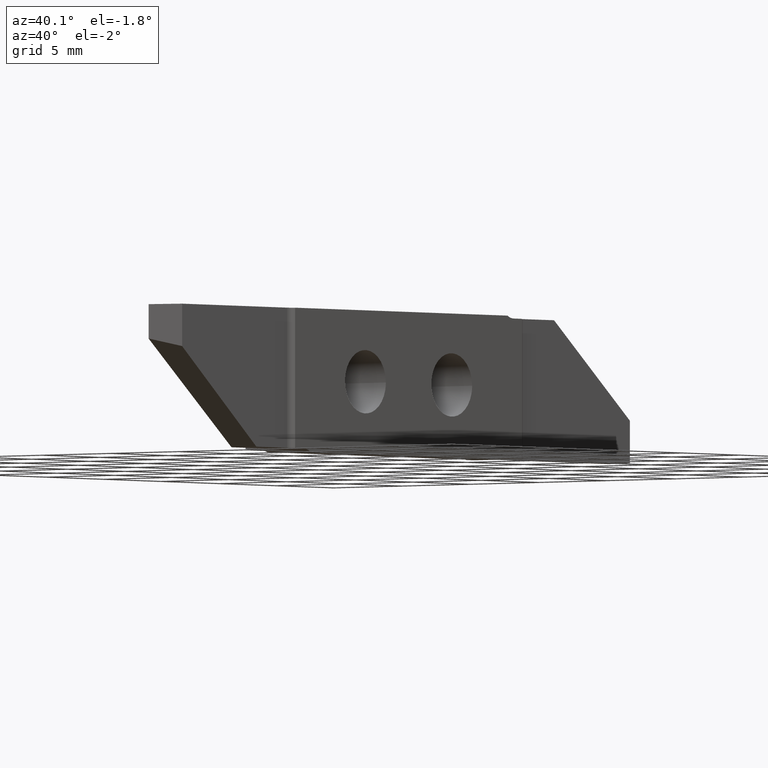
[diagram: clean part render]
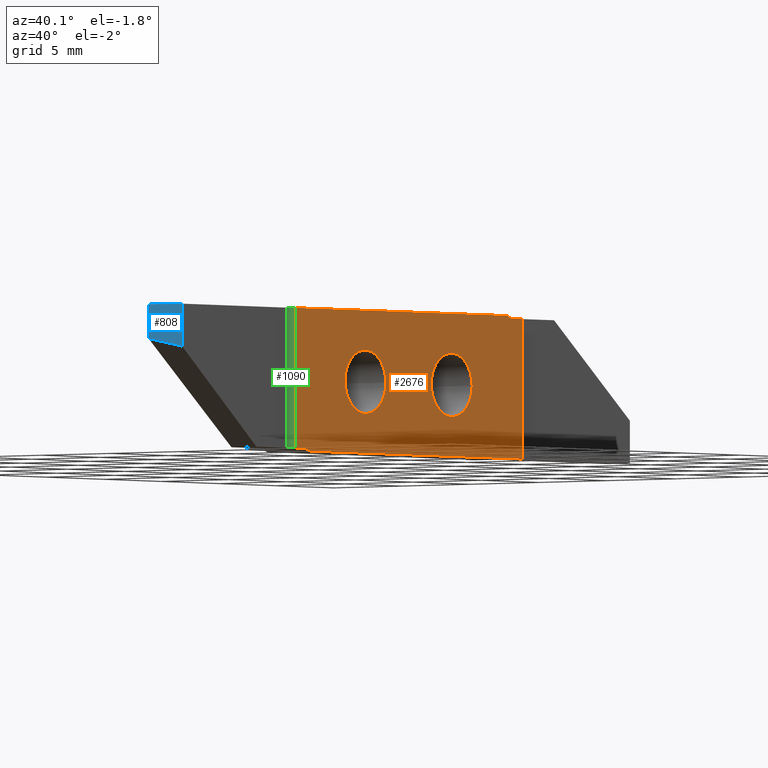
[diagram: same view with three faces highlighted in distinct colors, each labeled with its STEP entity id]
A machine part, auxiliary view with three faces highlighted in distinct colors.
Their STEP definitions:

[orange] entity #2676 — the highlighted planar face has unit normal (1, 0, -0).
#12=CARTESIAN_POINT('',(3.599999682,9.55,-3.000000382));
#13=VERTEX_POINT('',#12);
#24=CARTESIAN_POINT('',(3.599999682,13.1,-3.000000382));
#25=CARTESIAN_POINT('',(3.59999987,13.1,-1.225000382));
#26=CARTESIAN_POINT('',(3.59999987,11.325,-1.225000382));
#27=CARTESIAN_POINT('',(3.59999987,9.55,-1.225000382));
#28=CARTESIAN_POINT('',(3.599999682,9.55,-3.000000382));
#29=(BOUNDED_CURVE()B_SPLINE_CURVE(2,(#24,#25,#26,#27,#28),.UNSPECIFIED.,.F.,.F.)B_SPLINE_CURVE_WITH_KNOTS((3,2,3),(0.,1.570796327,3.141592654),.UNSPECIFIED.)CURVE()GEOMETRIC_REPRESENTATION_ITEM()RATIONAL_B_SPLINE_CURVE((1.,0.7071067812,1.,0.7071067812,1.)
)REPRESENTATION_ITEM(''));
#30=CARTESIAN_POINT('',(3.599999682,13.1,-3.000000382));
#31=VERTEX_POINT('',#30);
#32=EDGE_CURVE('',#31,#13,#29,.T.);
#363=CARTESIAN_POINT('',(3.599999682,2.05,-3.000000382));
#364=CARTESIAN_POINT('',(3.599999493,2.05,-4.775000382));
#365=CARTESIAN_POINT('',(3.599999493,3.825,-4.775000382));
#366=CARTESIAN_POINT('',(3.599999493,5.6,-4.775000382));
#367=CARTESIAN_POINT('',(3.599999682,5.6,-3.000000382));
#368=(BOUNDED_CURVE()B_SPLINE_CURVE(2,(#363,#364,#365,#366,#367),.UNSPECIFIED.,.F.,.F.)B_SPLINE_CURVE_WITH_KNOTS((3,2,3),(0.,1.570796327,3.141592654),.UNSPECIFIED.)CURVE()GEOMETRIC_REPRESENTATION_ITEM()RATIONAL_B_SPLINE_CURVE((1.,0.7071067812,1.,0.7071067812
,1.))REPRESENTATION_ITEM(''));
#369=CARTESIAN_POINT('',(3.599999682,2.05,-3.000000382));
#370=VERTEX_POINT('',#369);
#371=CARTESIAN_POINT('',(3.599999682,5.6,-3.000000382));
#372=VERTEX_POINT('',#371);
#373=EDGE_CURVE('',#370,#372,#368,.T.);
#445=CARTESIAN_POINT('',(3.599999682,5.6,-3.000000382));
#446=CARTESIAN_POINT('',(3.59999987,5.6,-1.225000382));
#447=CARTESIAN_POINT('',(3.59999987,3.825,-1.225000382));
#448=CARTESIAN_POINT('',(3.59999987,2.05,-1.225000382));
#449=CARTESIAN_POINT('',(3.599999682,2.05,-3.000000382));
#450=(BOUNDED_CURVE()B_SPLINE_CURVE(2,(#445,#446,#447,#448,#449),.UNSPECIFIED.,.F.,.F.)B_SPLINE_CURVE_WITH_KNOTS((3,2,3),(0.,1.570796327,3.141592654),.UNSPECIFIED.)CURVE()GEOMETRIC_REPRESENTATION_ITEM()RATIONAL_B_SPLINE_CURVE((1.,0.7071067812,1.,0.7071067812
,1.))REPRESENTATION_ITEM(''));
#451=EDGE_CURVE('',#372,#370,#450,.T.);
#517=CARTESIAN_POINT('',(3.599999273,-2.287185244,-6.850000382));
#518=VERTEX_POINT('',#517);
#529=CARTESIAN_POINT('',(3.599999273,-2.287185244,-6.850000382));
#530=DIRECTION('',(0.,1.,-2.426473385E-15));
#531=VECTOR('',#530,0.7320734902);
#532=LINE('',#529,#531);
#533=CARTESIAN_POINT('',(3.599999273,-1.555111754,-6.850000382));
#534=VERTEX_POINT('',#533);
#535=EDGE_CURVE('',#518,#534,#532,.T.);
#965=CARTESIAN_POINT('',(3.599999257,-1.028329067,-7.000000382));
#966=VERTEX_POINT('',#965);
#1003=CARTESIAN_POINT('',(3.599999273,-1.555111754,-6.850000382));
#1004=CARTESIAN_POINT('',(3.599999273,-1.270364355,-6.850000382));
#1005=CARTESIAN_POINT('',(3.599999257,-1.028329067,-7.000000382));
#1006=(BOUNDED_CURVE()B_SPLINE_CURVE(2,(#1003,#1004,#1005),.UNSPECIFIED.,.F.,.F.)B_SPLINE_CURVE_WITH_KNOTS((3,3),(0.,0.554811033),.UNSPECIFIED.)CURVE()GEOMETRIC_REPRESENTATION_ITEM()RATIONAL_B_SPLINE_CURVE((1.,0.9617692031,1.))REPRESENTATION_ITEM(''));
#1007=EDGE_CURVE('',#534,#966,#1006,.T.);
#1053=CARTESIAN_POINT('',(3.600000106,-2.287185244,0.999999618));
#1054=VERTEX_POINT('',#1053);
#1065=CARTESIAN_POINT('',(3.599999273,-2.287185244,-6.850000382));
#1066=DIRECTION('',(1.06116769E-07,-2.715449946E-15,1.));
#1067=VECTOR('',#1066,7.85);
#1068=LINE('',#1065,#1067);
#1069=EDGE_CURVE('',#518,#1054,#1068,.T.);
#1263=CARTESIAN_POINT('',(3.600000106,16.17832907,0.999999618));
#1264=VERTEX_POINT('',#1263);
#1275=CARTESIAN_POINT('',(3.600000106,16.17832907,0.999999618));
#1276=DIRECTION('',(0.,-1.,-1.483863584E-14));
#1277=VECTOR('',#1276,18.46551431);
#1278=LINE('',#1275,#1277);
#1279=EDGE_CURVE('',#1264,#1054,#1278,.T.);
#1398=CARTESIAN_POINT('',(3.60000009,16.70511175,0.849999618));
#1399=VERTEX_POINT('',#1398);
#1410=CARTESIAN_POINT('',(3.60000009,16.70511175,0.849999618));
#1411=CARTESIAN_POINT('',(3.60000009,16.42036436,0.849999618));
#1412=CARTESIAN_POINT('',(3.600000106,16.17832907,0.999999618));
#1413=(BOUNDED_CURVE()B_SPLINE_CURVE(2,(#1410,#1411,#1412),.UNSPECIFIED.,.F.,.F.)B_SPLINE_CURVE_WITH_KNOTS((3,3),(0.,0.554811033),.UNSPECIFIED.)CURVE()GEOMETRIC_REPRESENTATION_ITEM()RATIONAL_B_SPLINE_CURVE((1.,0.9617692031,1.))REPRESENTATION_ITEM(''));
#1414=EDGE_CURVE('',#1399,#1264,#1413,.T.);
#1722=CARTESIAN_POINT('',(3.60000009,17.43718524,0.849999618));
#1723=VERTEX_POINT('',#1722);
#1734=CARTESIAN_POINT('',(3.60000009,17.43718524,0.849999618));
#1735=DIRECTION('',(0.,-1.,3.639710077E-15));
#1736=VECTOR('',#1735,0.7320734902);
#1737=LINE('',#1734,#1736);
#1738=EDGE_CURVE('',#1723,#1399,#1737,.T.);
#1802=CARTESIAN_POINT('',(3.599999257,17.43718524,-7.000000382));
#1803=VERTEX_POINT('',#1802);
#1814=CARTESIAN_POINT('',(3.60000009,17.43718524,0.849999618));
#1815=DIRECTION('',(-1.06116769E-07,2.715449946E-15,-1.));
#1816=VECTOR('',#1815,7.85);
#1817=LINE('',#1814,#1816);
#1818=EDGE_CURVE('',#1723,#1803,#1817,.T.);
#2296=CARTESIAN_POINT('',(3.599999257,-1.028329067,-7.000000382));
#2297=DIRECTION('',(0.,1.,-3.463150018E-15));
#2298=VECTOR('',#2297,18.46551431);
#2299=LINE('',#2296,#2298);
#2300=EDGE_CURVE('',#966,#1803,#2299,.T.);
#2550=CARTESIAN_POINT('',(3.599999682,7.575,-3.000000382));
#2551=DIRECTION('',(1.,0.,-1.061167691E-07));
#2552=DIRECTION('',(1.061167691E-07,0.,1.));
#2553=AXIS2_PLACEMENT_3D('',#2550,#2551,#2552);
#2554=PLANE('',#2553);
#2555=ORIENTED_EDGE('Edge 274',*,*,#1069,.F.);
#2564=ORIENTED_EDGE('Edge 279',*,*,#535,.T.);
#2573=ORIENTED_EDGE('Edge 284',*,*,#1007,.T.);
#2582=ORIENTED_EDGE('Edge 461',*,*,#2300,.T.);
#2591=ORIENTED_EDGE('Edge 950',*,*,#1818,.F.);
#2600=ORIENTED_EDGE('Edge 555',*,*,#1738,.T.);
#2609=ORIENTED_EDGE('Edge 1009',*,*,#1414,.T.);
#2618=ORIENTED_EDGE('Edge 192',*,*,#1279,.T.);
#2627=EDGE_LOOP('',(#2555,#2564,#2573,#2582,#2591,#2600,#2609,#2618));
#2628=FACE_OUTER_BOUND('Loop 310',#2627,.T.);
#2629=ORIENTED_EDGE('Edge 315',*,*,#373,.F.);
#2638=ORIENTED_EDGE('Edge 320',*,*,#451,.F.);
#2647=EDGE_LOOP('',(#2629,#2638));
#2648=FACE_BOUND('Loop 321',#2647,.T.);
#2649=CARTESIAN_POINT('',(3.599999682,9.55,-3.000000382));
#2650=CARTESIAN_POINT('',(3.599999493,9.55,-4.775000382));
#2651=CARTESIAN_POINT('',(3.599999493,11.325,-4.775000382));
#2652=CARTESIAN_POINT('',(3.599999493,13.1,-4.775000382));
#2653=CARTESIAN_POINT('',(3.599999682,13.1,-3.000000382));
#2654=(BOUNDED_CURVE()B_SPLINE_CURVE(2,(#2649,#2650,#2651,#2652,#2653),.UNSPECIFIED.,.F.,.F.)B_SPLINE_CURVE_WITH_KNOTS((3,2,3),(0.,1.570796327,3.141592654),.UNSPECIFIED.)CURVE()GEOMETRIC_REPRESENTATION_ITEM()RATIONAL_B_SPLINE_CURVE((1.,0.7071067812,1.,0.7071067812
,1.))REPRESENTATION_ITEM(''));
#2655=EDGE_CURVE('',#13,#31,#2654,.T.);
#2656=ORIENTED_EDGE('Edge 326',*,*,#2655,.F.);
#2665=ORIENTED_EDGE('Edge 331',*,*,#32,.F.);
#2674=EDGE_LOOP('',(#2656,#2665));
#2675=FACE_BOUND('Loop 332',#2674,.T.);
#2676=ADVANCED_FACE('Face 333',(#2628,#2648,#2675),#2554,.T.);

[blue] entity #808 — the highlighted planar face has unit normal (-0.2588, 0.9659, 0).
#684=CARTESIAN_POINT('',(1.409999902,-12.425,-0.924191614));
#685=VERTEX_POINT('',#684);
#696=CARTESIAN_POINT('',(3.409999854,-11.88910162,-1.373863963));
#697=DIRECTION('',(-0.9439222337,-0.2529232063,0.2122278693));
#698=VECTOR('',#697,2.118818565);
#699=LINE('',#696,#698);
#700=CARTESIAN_POINT('',(3.409999854,-11.88910162,-1.373863963));
#701=VERTEX_POINT('',#700);
#702=EDGE_CURVE('',#701,#685,#699,.T.);
#746=CARTESIAN_POINT('',(2.023632536,-12.26057843,27.00987644));
#747=DIRECTION('',(-0.2588190451,0.9659258263,2.746503736E-08));
#748=DIRECTION('',(7.108474742E-09,-2.65291889E-08,1.));
#749=AXIS2_PLACEMENT_3D('',#746,#747,#748);
#750=PLANE('',#749);
#751=CARTESIAN_POINT('',(1.410000106,-12.425,0.9999998504));
#752=DIRECTION('',(-1.061167691E-07,-3.69268209E-15,-1.));
#753=VECTOR('',#752,1.924191464);
#754=LINE('',#751,#753);
#755=CARTESIAN_POINT('',(1.410000106,-12.425,0.9999998504));
#756=VERTEX_POINT('',#755);
#757=EDGE_CURVE('',#756,#685,#754,.T.);
#758=ORIENTED_EDGE('Edge 1082',*,*,#757,.T.);
#767=CARTESIAN_POINT('',(1.410000106,-12.425,0.9999998504));
#768=DIRECTION('',(0.9659258263,0.2588190451,-1.025010929E-07));
#769=VECTOR('',#768,2.070552361);
#770=LINE('',#767,#769);
#771=CARTESIAN_POINT('',(3.410000106,-11.88910162,0.9999996381));
#772=VERTEX_POINT('',#771);
#773=EDGE_CURVE('',#756,#772,#770,.T.);
#774=ORIENTED_EDGE('Edge 207',*,*,#773,.F.);
#783=CARTESIAN_POINT('',(3.410000106,-11.88910162,0.9999996381));
#784=DIRECTION('',(-1.06116769E-07,-2.99319108E-15,-1.));
#785=VECTOR('',#784,2.373863601);
#786=LINE('',#783,#785);
#787=EDGE_CURVE('',#772,#701,#786,.T.);
#788=ORIENTED_EDGE('Edge 1027',*,*,#787,.F.);
#797=ORIENTED_EDGE('Edge 244',*,*,#702,.F.);
#806=EDGE_LOOP('',(#797,#788,#774,#758));
#807=FACE_OUTER_BOUND('Loop 1070',#806,.T.);
#808=ADVANCED_FACE('Face 1071',(#807),#750,.F.);

[green] entity #1090 — the highlighted cylindrical surface (edge-blend (fillet) strip) has radius 0.4 mm, axis along (-0, 0, -1).
#499=CARTESIAN_POINT('',(3.329537756,-2.669124966,-6.850000353));
#500=VERTEX_POINT('',#499);
#513=CARTESIAN_POINT('',(3.599999273,-2.287185244,-6.850000382));
#514=CARTESIAN_POINT('',(3.327019939,-2.380611732,-6.850000353));
#515=CARTESIAN_POINT('',(3.329537756,-2.669124966,-6.850000353));
#516=(BOUNDED_CURVE()B_SPLINE_CURVE(2,(#513,#514,#515),.UNSPECIFIED.,.F.,.F.)B_SPLINE_CURVE_WITH_KNOTS((3,3),(0.,1.249771258),.UNSPECIFIED.)CURVE()GEOMETRIC_REPRESENTATION_ITEM()RATIONAL_B_SPLINE_CURVE((1.,0.8110300322,1.))REPRESENTATION_ITEM(''));
#517=CARTESIAN_POINT('',(3.599999273,-2.287185244,-6.850000382));
#518=VERTEX_POINT('',#517);
#519=EDGE_CURVE('',#518,#500,#516,.T.);
#1028=CARTESIAN_POINT('',(3.729523441,-2.665634352,1.784999604));
#1029=DIRECTION('',(-1.06116769E-07,3.386180225E-15,-1.));
#1030=DIRECTION('',(0.,-1.,-3.386180225E-15));
#1031=AXIS2_PLACEMENT_3D('',#1028,#1029,#1030);
#1032=CYLINDRICAL_SURFACE('',#1031,0.4);
#1033=CARTESIAN_POINT('',(3.329537756,-2.669124966,-6.850000353));
#1034=DIRECTION('',(1.06116769E-07,-9.277787314E-15,1.));
#1035=VECTOR('',#1034,7.85);
#1036=LINE('',#1033,#1035);
#1037=CARTESIAN_POINT('',(3.329538589,-2.669124966,0.9999996467));
#1038=VERTEX_POINT('',#1037);
#1039=EDGE_CURVE('',#500,#1038,#1036,.T.);
#1040=ORIENTED_EDGE('Edge 1037',*,*,#1039,.F.);
#1049=CARTESIAN_POINT('',(3.329538589,-2.669124966,0.9999996467));
#1050=CARTESIAN_POINT('',(3.327020772,-2.380611732,0.9999996469));
#1051=CARTESIAN_POINT('',(3.600000106,-2.287185244,0.999999618));
#1052=(BOUNDED_CURVE()B_SPLINE_CURVE(2,(#1049,#1050,#1051),.UNSPECIFIED.,.F.,.F.)B_SPLINE_CURVE_WITH_KNOTS((3,3),(0.,1.249771258),.UNSPECIFIED.)CURVE()GEOMETRIC_REPRESENTATION_ITEM()RATIONAL_B_SPLINE_CURVE((1.,0.8110300322,1.))REPRESENTATION_ITEM(''));
#1053=CARTESIAN_POINT('',(3.600000106,-2.287185244,0.999999618));
#1054=VERTEX_POINT('',#1053);
#1055=EDGE_CURVE('',#1038,#1054,#1052,.T.);
#1056=ORIENTED_EDGE('Edge 197',*,*,#1055,.F.);
#1065=CARTESIAN_POINT('',(3.599999273,-2.287185244,-6.850000382));
#1066=DIRECTION('',(1.06116769E-07,-2.715449946E-15,1.));
#1067=VECTOR('',#1066,7.85);
#1068=LINE('',#1065,#1067);
#1069=EDGE_CURVE('',#518,#1054,#1068,.T.);
#1070=ORIENTED_EDGE('Edge 274',*,*,#1069,.T.);
#1079=ORIENTED_EDGE('Edge 1183',*,*,#519,.F.);
#1088=EDGE_LOOP('',(#1079,#1070,#1056,#1040));
#1089=FACE_OUTER_BOUND('Loop 1184',#1088,.T.);
#1090=ADVANCED_FACE('Face 1185',(#1089),#1032,.F.);